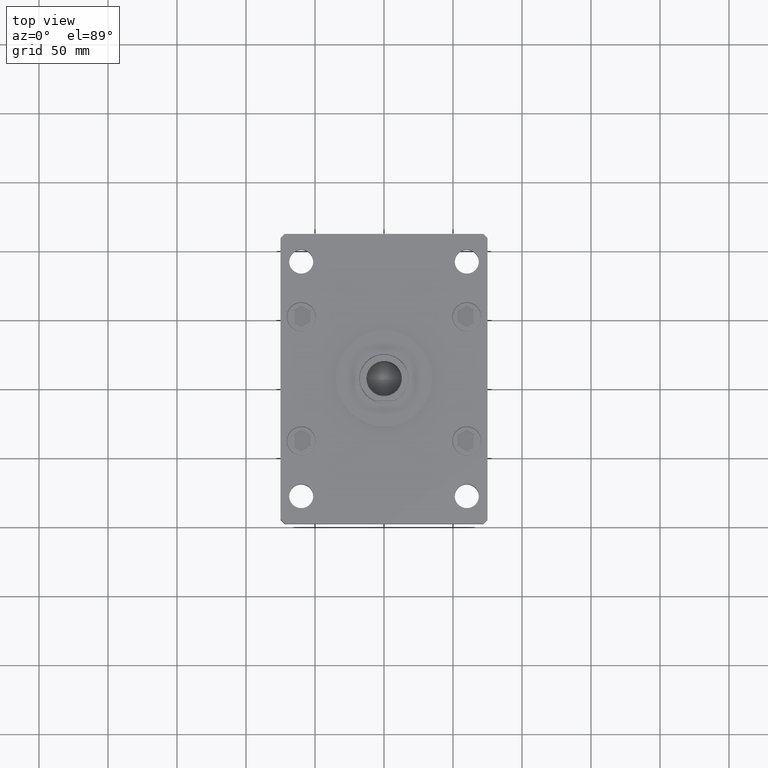
[diagram: clean part render]
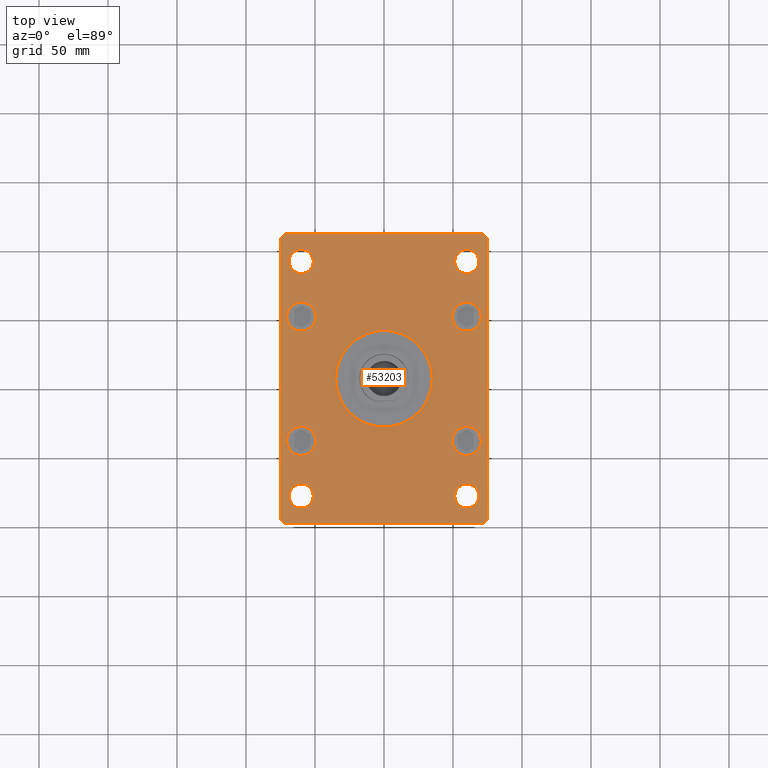
[diagram: same view with one face highlighted and labeled with its STEP entity id]
A machine part, top view. The second image highlights one B-rep face of the part: STEP entity #53203.
In plain terms, the highlighted planar face has unit normal (0, 0, 1).
Its self-contained STEP definition (entity closure, byte-faithful):
#122 = DIRECTION ( 'NONE',  ( 1.000000000000000000, 0.000000000000000000, -0.000000000000000000 ) ) ;
#176 = CIRCLE ( 'NONE', #37139, 10.50000000000000178 ) ;
#358 = AXIS2_PLACEMENT_3D ( 'NONE', #45935, #9316, #38651 ) ;
#674 = VERTEX_POINT ( 'NONE', #7983 ) ;
#840 = DIRECTION ( 'NONE',  ( 1.000000000000000000, 0.000000000000000000, 0.000000000000000000 ) ) ;
#1080 = ORIENTED_EDGE ( 'NONE', *, *, #24719, .F. ) ;
#1154 = ORIENTED_EDGE ( 'NONE', *, *, #52300, .F. ) ;
#1344 = DIRECTION ( 'NONE',  ( 1.000000000000000000, 0.000000000000000000, 0.000000000000000000 ) ) ;
#1459 = CARTESIAN_POINT ( 'NONE',  ( 68.75000000000000000, 84.99999999999998579, 27.00000000000000000 ) ) ;
#1609 = AXIS2_PLACEMENT_3D ( 'NONE', #44752, #33695, #37461 ) ;
#1645 = CIRCLE ( 'NONE', #12077, 10.49999999999999467 ) ;
#1860 = DIRECTION ( 'NONE',  ( 0.000000000000000000, 0.000000000000000000, 1.000000000000000000 ) ) ;
#2057 = AXIS2_PLACEMENT_3D ( 'NONE', #37257, #41310, #16549 ) ;
#2062 = EDGE_CURVE ( 'NONE', #11762, #26438, #36435, .T. ) ;
#2147 = EDGE_LOOP ( 'NONE', ( #18440, #53268 ) ) ;
#2414 = CIRCLE ( 'NONE', #13607, 8.750000000000007105 ) ;
#2774 = EDGE_CURVE ( 'NONE', #16116, #37351, #17884, .T. ) ;
#3089 = AXIS2_PLACEMENT_3D ( 'NONE', #12184, #29641, #840 ) ;
#3674 = EDGE_CURVE ( 'NONE', #16389, #17992, #27025, .T. ) ;
#3694 = CARTESIAN_POINT ( 'NONE',  ( -49.49999999999999289, -45.00000000000000000, 27.00000000000000000 ) ) ;
#3822 = AXIS2_PLACEMENT_3D ( 'NONE', #6044, #22458, #13334 ) ;
#4180 = DIRECTION ( 'NONE',  ( 1.000000000000000000, 7.709882115452476194E-16, 0.000000000000000000 ) ) ;
#4266 = ORIENTED_EDGE ( 'NONE', *, *, #10243, .F. ) ;
#4799 = ORIENTED_EDGE ( 'NONE', *, *, #34742, .F. ) ;
#5094 = DIRECTION ( 'NONE',  ( 1.000000000000000000, 0.000000000000000000, 0.000000000000000000 ) ) ;
#5169 = EDGE_CURVE ( 'NONE', #16867, #31351, #51125, .T. ) ;
#5299 = DIRECTION ( 'NONE',  ( -0.7071067811865459074, -0.7071067811865491270, 0.000000000000000000 ) ) ;
#5301 = CARTESIAN_POINT ( 'NONE',  ( -72.00000000000002842, 105.0000000000000000, 27.00000000000000000 ) ) ;
#5375 = DIRECTION ( 'NONE',  ( 0.000000000000000000, 0.000000000000000000, 1.000000000000000000 ) ) ;
#5658 = ORIENTED_EDGE ( 'NONE', *, *, #49992, .F. ) ;
#5718 = VECTOR ( 'NONE', #22574, 1000.000000000000000 ) ;
#6044 = CARTESIAN_POINT ( 'NONE',  ( -60.00000000000000711, 84.99999999999997158, 27.00000000000000000 ) ) ;
#6071 = CARTESIAN_POINT ( 'NONE',  ( -51.25000000000000000, 84.99999999999997158, 27.00000000000000000 ) ) ;
#6159 = LINE ( 'NONE', #6426, #5718 ) ;
#6426 = CARTESIAN_POINT ( 'NONE',  ( 72.00000000000004263, 105.0000000000000284, 27.00000000000000000 ) ) ;
#6636 = CIRCLE ( 'NONE', #18669, 8.750000000000007105 ) ;
#6782 = VECTOR ( 'NONE', #28862, 1000.000000000000000 ) ;
#7535 = CARTESIAN_POINT ( 'NONE',  ( 60.00000000000000000, -45.00000000000000711, 27.00000000000000000 ) ) ;
#7674 = DIRECTION ( 'NONE',  ( 1.000000000000000000, 0.000000000000000000, 0.000000000000000000 ) ) ;
#7681 = CIRCLE ( 'NONE', #31765, 8.750000000000007105 ) ;
#7811 = EDGE_CURVE ( 'NONE', #27761, #33843, #26290, .T. ) ;
#7812 = AXIS2_PLACEMENT_3D ( 'NONE', #34294, #46683, #9804 ) ;
#7852 = DIRECTION ( 'NONE',  ( 1.000000000000000000, 0.000000000000000000, 0.000000000000000000 ) ) ;
#7983 = CARTESIAN_POINT ( 'NONE',  ( 75.00000000000001421, 102.0000000000000142, 27.00000000000000000 ) ) ;
#8034 = EDGE_LOOP ( 'NONE', ( #5658, #36773 ) ) ;
#8050 = VERTEX_POINT ( 'NONE', #15865 ) ;
#8659 = AXIS2_PLACEMENT_3D ( 'NONE', #23831, #20330, #7674 ) ;
#8845 = CARTESIAN_POINT ( 'NONE',  ( 72.00000000000004263, 105.0000000000000284, 27.00000000000000000 ) ) ;
#9090 = EDGE_CURVE ( 'NONE', #43588, #9428, #6159, .T. ) ;
#9316 = DIRECTION ( 'NONE',  ( 0.000000000000000000, 0.000000000000000000, 1.000000000000000000 ) ) ;
#9395 = CARTESIAN_POINT ( 'NONE',  ( 59.99999999999997158, -85.00000000000001421, 27.00000000000000000 ) ) ;
#9428 = VERTEX_POINT ( 'NONE', #5301 ) ;
#9787 = VECTOR ( 'NONE', #13423, 1000.000000000000114 ) ;
#9804 = DIRECTION ( 'NONE',  ( 1.000000000000000000, 0.000000000000000000, 0.000000000000000000 ) ) ;
#10054 = AXIS2_PLACEMENT_3D ( 'NONE', #38741, #1860, #14244 ) ;
#10243 = EDGE_CURVE ( 'NONE', #25570, #25449, #33255, .T. ) ;
#10332 = EDGE_CURVE ( 'NONE', #11208, #23858, #18632, .T. ) ;
#10748 = VERTEX_POINT ( 'NONE', #18821 ) ;
#10898 = AXIS2_PLACEMENT_3D ( 'NONE', #13722, #5375, #33639 ) ;
#11131 = DIRECTION ( 'NONE',  ( 0.000000000000000000, 0.000000000000000000, 1.000000000000000000 ) ) ;
#11208 = VERTEX_POINT ( 'NONE', #26681 ) ;
#11316 = DIRECTION ( 'NONE',  ( 1.000000000000000000, 0.000000000000000000, 0.000000000000000000 ) ) ;
#11712 = FACE_BOUND ( 'NONE', #32734, .T. ) ;
#11730 = LINE ( 'NONE', #35215, #16242 ) ;
#11762 = VERTEX_POINT ( 'NONE', #27677 ) ;
#12077 = AXIS2_PLACEMENT_3D ( 'NONE', #18301, #39538, #30668 ) ;
#12174 = EDGE_LOOP ( 'NONE', ( #27941, #34195 ) ) ;
#12184 = CARTESIAN_POINT ( 'NONE',  ( -60.00000000000000000, 45.00000000000001421, 27.00000000000000000 ) ) ;
#12308 = ORIENTED_EDGE ( 'NONE', *, *, #48988, .T. ) ;
#12467 = CARTESIAN_POINT ( 'NONE',  ( 75.00000000000000000, -101.9999999999999005, 27.00000000000000000 ) ) ;
#13058 = DIRECTION ( 'NONE',  ( 0.7071067811865474617, -0.7071067811865474617, 0.000000000000000000 ) ) ;
#13334 = DIRECTION ( 'NONE',  ( 1.000000000000000000, 0.000000000000000000, 0.000000000000000000 ) ) ;
#13343 = CARTESIAN_POINT ( 'NONE',  ( 35.00000000000000711, 4.286263797015737285E-15, 27.00000000000000000 ) ) ;
#13423 = DIRECTION ( 'NONE',  ( 0.7071067811865459074, 0.7071067811865491270, 0.000000000000000000 ) ) ;
#13607 = AXIS2_PLACEMENT_3D ( 'NONE', #9395, #37925, #5094 ) ;
#13722 = CARTESIAN_POINT ( 'NONE',  ( 60.00000000000000000, 84.99999999999998579, 27.00000000000000000 ) ) ;
#14244 = DIRECTION ( 'NONE',  ( 1.000000000000000000, 0.000000000000000000, 0.000000000000000000 ) ) ;
#14569 = EDGE_CURVE ( 'NONE', #17992, #16389, #6636, .T. ) ;
#15753 = DIRECTION ( 'NONE',  ( -0.7071067811865426878, 0.7071067811865524577, 0.000000000000000000 ) ) ;
#15841 = CIRCLE ( 'NONE', #27022, 10.49999999999999467 ) ;
#15865 = CARTESIAN_POINT ( 'NONE',  ( 68.74999999999997158, -85.00000000000001421, 27.00000000000000000 ) ) ;
#15887 = CARTESIAN_POINT ( 'NONE',  ( -49.49999999999999289, 45.00000000000001421, 27.00000000000000000 ) ) ;
#15892 = CARTESIAN_POINT ( 'NONE',  ( 49.50000000000000000, -45.00000000000000711, 27.00000000000000000 ) ) ;
#16116 = VERTEX_POINT ( 'NONE', #29889 ) ;
#16242 = VECTOR ( 'NONE', #15753, 1000.000000000000000 ) ;
#16275 = FACE_BOUND ( 'NONE', #8034, .T. ) ;
#16389 = VERTEX_POINT ( 'NONE', #6071 ) ;
#16545 = CARTESIAN_POINT ( 'NONE',  ( 75.00000000000000000, -101.9999999999999005, 27.00000000000000000 ) ) ;
#16549 = DIRECTION ( 'NONE',  ( 1.000000000000000000, 0.000000000000000000, 0.000000000000000000 ) ) ;
#16586 = CARTESIAN_POINT ( 'NONE',  ( 70.50000000000000000, 45.00000000000000711, 27.00000000000000000 ) ) ;
#16867 = VERTEX_POINT ( 'NONE', #38779 ) ;
#17622 = CARTESIAN_POINT ( 'NONE',  ( -74.99999999999998579, -102.0000000000000142, 27.00000000000000000 ) ) ;
#17884 = LINE ( 'NONE', #17622, #33032 ) ;
#17992 = VERTEX_POINT ( 'NONE', #49449 ) ;
#18299 = ORIENTED_EDGE ( 'NONE', *, *, #20591, .T. ) ;
#18301 = CARTESIAN_POINT ( 'NONE',  ( 60.00000000000000000, 45.00000000000000711, 27.00000000000000000 ) ) ;
#18440 = ORIENTED_EDGE ( 'NONE', *, *, #7811, .F. ) ;
#18502 = CARTESIAN_POINT ( 'NONE',  ( -72.00000000000002842, 105.0000000000000000, 27.00000000000000000 ) ) ;
#18632 = CIRCLE ( 'NONE', #10054, 35.00000000000000711 ) ;
#18669 = AXIS2_PLACEMENT_3D ( 'NONE', #28036, #24544, #7852 ) ;
#18821 = CARTESIAN_POINT ( 'NONE',  ( -70.50000000000000000, -45.00000000000000000, 27.00000000000000000 ) ) ;
#19186 = VERTEX_POINT ( 'NONE', #16545 ) ;
#19542 = LINE ( 'NONE', #20340, #20688 ) ;
#19785 = FACE_BOUND ( 'NONE', #28976, .T. ) ;
#19812 = EDGE_CURVE ( 'NONE', #9428, #26573, #40914, .T. ) ;
#20330 = DIRECTION ( 'NONE',  ( 0.000000000000000000, 0.000000000000000000, 1.000000000000000000 ) ) ;
#20340 = CARTESIAN_POINT ( 'NONE',  ( -71.99999999999998579, -105.0000000000000142, 27.00000000000000000 ) ) ;
#20591 = EDGE_CURVE ( 'NONE', #19186, #674, #36933, .T. ) ;
#20688 = VECTOR ( 'NONE', #4180, 1000.000000000000000 ) ;
#20962 = AXIS2_PLACEMENT_3D ( 'NONE', #32693, #44541, #122 ) ;
#21622 = ORIENTED_EDGE ( 'NONE', *, *, #2774, .T. ) ;
#21624 = CIRCLE ( 'NONE', #38837, 10.49999999999999467 ) ;
#21718 = CARTESIAN_POINT ( 'NONE',  ( -70.50000000000000000, 45.00000000000001421, 27.00000000000000000 ) ) ;
#21756 = LINE ( 'NONE', #41945, #9787 ) ;
#22246 = CIRCLE ( 'NONE', #1609, 10.50000000000000178 ) ;
#22458 = DIRECTION ( 'NONE',  ( 0.000000000000000000, 0.000000000000000000, 1.000000000000000000 ) ) ;
#22574 = DIRECTION ( 'NONE',  ( -1.000000000000000000, -1.927470528863118062E-16, 0.000000000000000000 ) ) ;
#22807 = EDGE_LOOP ( 'NONE', ( #36700, #39885 ) ) ;
#23524 = ORIENTED_EDGE ( 'NONE', *, *, #44187, .F. ) ;
#23831 = CARTESIAN_POINT ( 'NONE',  ( 60.00000000000000000, 84.99999999999998579, 27.00000000000000000 ) ) ;
#23858 = VERTEX_POINT ( 'NONE', #13343 ) ;
#24544 = DIRECTION ( 'NONE',  ( 0.000000000000000000, 0.000000000000000000, 1.000000000000000000 ) ) ;
#24719 = EDGE_CURVE ( 'NONE', #25449, #25570, #47351, .T. ) ;
#24841 = VECTOR ( 'NONE', #5299, 1000.000000000000114 ) ;
#25226 = CIRCLE ( 'NONE', #51852, 10.50000000000000178 ) ;
#25400 = EDGE_CURVE ( 'NONE', #37351, #38755, #19542, .T. ) ;
#25449 = VERTEX_POINT ( 'NONE', #36742 ) ;
#25514 = VERTEX_POINT ( 'NONE', #30257 ) ;
#25570 = VERTEX_POINT ( 'NONE', #1459 ) ;
#25595 = CARTESIAN_POINT ( 'NONE',  ( -60.00000000000000000, -45.00000000000000000, 27.00000000000000000 ) ) ;
#25603 = EDGE_CURVE ( 'NONE', #23858, #11208, #41366, .T. ) ;
#26290 = CIRCLE ( 'NONE', #3089, 10.50000000000000178 ) ;
#26438 = VERTEX_POINT ( 'NONE', #27544 ) ;
#26573 = VERTEX_POINT ( 'NONE', #48008 ) ;
#26665 = CARTESIAN_POINT ( 'NONE',  ( -71.99999999999998579, -105.0000000000000142, 27.00000000000000000 ) ) ;
#26681 = CARTESIAN_POINT ( 'NONE',  ( -35.00000000000000711, 0.000000000000000000, 27.00000000000000000 ) ) ;
#27022 = AXIS2_PLACEMENT_3D ( 'NONE', #7535, #48714, #35274 ) ;
#27025 = CIRCLE ( 'NONE', #3822, 8.750000000000007105 ) ;
#27051 = ORIENTED_EDGE ( 'NONE', *, *, #2062, .F. ) ;
#27283 = EDGE_CURVE ( 'NONE', #8050, #37485, #2414, .T. ) ;
#27507 = VERTEX_POINT ( 'NONE', #3694 ) ;
#27544 = CARTESIAN_POINT ( 'NONE',  ( -51.24999999999996447, -85.00000000000001421, 27.00000000000000000 ) ) ;
#27677 = CARTESIAN_POINT ( 'NONE',  ( -68.74999999999997158, -85.00000000000001421, 27.00000000000000000 ) ) ;
#27761 = VERTEX_POINT ( 'NONE', #21718 ) ;
#27803 = DIRECTION ( 'NONE',  ( 1.000000000000000000, 0.000000000000000000, 0.000000000000000000 ) ) ;
#27941 = ORIENTED_EDGE ( 'NONE', *, *, #10332, .F. ) ;
#28036 = CARTESIAN_POINT ( 'NONE',  ( -60.00000000000000711, 84.99999999999997158, 27.00000000000000000 ) ) ;
#28219 = ORIENTED_EDGE ( 'NONE', *, *, #9090, .T. ) ;
#28261 = EDGE_CURVE ( 'NONE', #33843, #27761, #22246, .T. ) ;
#28389 = FACE_BOUND ( 'NONE', #2147, .T. ) ;
#28640 = LINE ( 'NONE', #53132, #41602 ) ;
#28862 = DIRECTION ( 'NONE',  ( 6.802837160693364103E-17, 1.000000000000000000, 0.000000000000000000 ) ) ;
#28924 = FACE_BOUND ( 'NONE', #22807, .T. ) ;
#28965 = EDGE_LOOP ( 'NONE', ( #27051, #46907 ) ) ;
#28976 = EDGE_LOOP ( 'NONE', ( #1080, #4266 ) ) ;
#29615 = DIRECTION ( 'NONE',  ( 0.000000000000000000, 0.000000000000000000, 1.000000000000000000 ) ) ;
#29641 = DIRECTION ( 'NONE',  ( 0.000000000000000000, 0.000000000000000000, 1.000000000000000000 ) ) ;
#29889 = CARTESIAN_POINT ( 'NONE',  ( -74.99999999999998579, -102.0000000000000142, 27.00000000000000000 ) ) ;
#30257 = CARTESIAN_POINT ( 'NONE',  ( 49.50000000000000000, 45.00000000000000711, 27.00000000000000000 ) ) ;
#30668 = DIRECTION ( 'NONE',  ( 1.000000000000000000, 0.000000000000000000, 0.000000000000000000 ) ) ;
#30727 = EDGE_CURVE ( 'NONE', #674, #43588, #11730, .T. ) ;
#30862 = ORIENTED_EDGE ( 'NONE', *, *, #5169, .F. ) ;
#31054 = EDGE_CURVE ( 'NONE', #26438, #11762, #7681, .T. ) ;
#31351 = VERTEX_POINT ( 'NONE', #15892 ) ;
#31765 = AXIS2_PLACEMENT_3D ( 'NONE', #48526, #11131, #27803 ) ;
#32287 = CARTESIAN_POINT ( 'NONE',  ( -60.00000000000000000, -45.00000000000000000, 27.00000000000000000 ) ) ;
#32693 = CARTESIAN_POINT ( 'NONE',  ( 0.000000000000000000, 0.000000000000000000, 27.00000000000000000 ) ) ;
#32734 = EDGE_LOOP ( 'NONE', ( #4799, #36888 ) ) ;
#32826 = CARTESIAN_POINT ( 'NONE',  ( 60.00000000000000000, 45.00000000000000711, 27.00000000000000000 ) ) ;
#33028 = CIRCLE ( 'NONE', #358, 8.750000000000007105 ) ;
#33032 = VECTOR ( 'NONE', #13058, 1000.000000000000114 ) ;
#33055 = EDGE_LOOP ( 'NONE', ( #1154, #23524 ) ) ;
#33255 = CIRCLE ( 'NONE', #10898, 8.750000000000007105 ) ;
#33639 = DIRECTION ( 'NONE',  ( 1.000000000000000000, 0.000000000000000000, 0.000000000000000000 ) ) ;
#33695 = DIRECTION ( 'NONE',  ( 0.000000000000000000, 0.000000000000000000, 1.000000000000000000 ) ) ;
#33805 = ORIENTED_EDGE ( 'NONE', *, *, #25400, .T. ) ;
#33843 = VERTEX_POINT ( 'NONE', #15887 ) ;
#34195 = ORIENTED_EDGE ( 'NONE', *, *, #25603, .F. ) ;
#34294 = CARTESIAN_POINT ( 'NONE',  ( 0.000000000000000000, 0.000000000000000000, 27.00000000000000000 ) ) ;
#34742 = EDGE_CURVE ( 'NONE', #25514, #40058, #1645, .T. ) ;
#35215 = CARTESIAN_POINT ( 'NONE',  ( 75.00000000000001421, 102.0000000000000142, 27.00000000000000000 ) ) ;
#35274 = DIRECTION ( 'NONE',  ( 1.000000000000000000, 0.000000000000000000, 0.000000000000000000 ) ) ;
#36187 = FACE_OUTER_BOUND ( 'NONE', #41808, .T. ) ;
#36435 = CIRCLE ( 'NONE', #2057, 8.750000000000007105 ) ;
#36700 = ORIENTED_EDGE ( 'NONE', *, *, #14569, .F. ) ;
#36742 = CARTESIAN_POINT ( 'NONE',  ( 51.24999999999998579, 84.99999999999998579, 27.00000000000000000 ) ) ;
#36773 = ORIENTED_EDGE ( 'NONE', *, *, #27283, .F. ) ;
#36888 = ORIENTED_EDGE ( 'NONE', *, *, #42817, .F. ) ;
#36933 = LINE ( 'NONE', #12467, #6782 ) ;
#36994 = FACE_BOUND ( 'NONE', #12174, .T. ) ;
#37139 = AXIS2_PLACEMENT_3D ( 'NONE', #32287, #48182, #11316 ) ;
#37257 = CARTESIAN_POINT ( 'NONE',  ( -59.99999999999997158, -85.00000000000001421, 27.00000000000000000 ) ) ;
#37351 = VERTEX_POINT ( 'NONE', #26665 ) ;
#37461 = DIRECTION ( 'NONE',  ( 1.000000000000000000, 0.000000000000000000, 0.000000000000000000 ) ) ;
#37485 = VERTEX_POINT ( 'NONE', #52381 ) ;
#37925 = DIRECTION ( 'NONE',  ( 0.000000000000000000, 0.000000000000000000, 1.000000000000000000 ) ) ;
#38651 = DIRECTION ( 'NONE',  ( 1.000000000000000000, 0.000000000000000000, 0.000000000000000000 ) ) ;
#38741 = CARTESIAN_POINT ( 'NONE',  ( 0.000000000000000000, 0.000000000000000000, 27.00000000000000000 ) ) ;
#38755 = VERTEX_POINT ( 'NONE', #51917 ) ;
#38779 = CARTESIAN_POINT ( 'NONE',  ( 70.50000000000000000, -45.00000000000000711, 27.00000000000000000 ) ) ;
#38784 = DIRECTION ( 'NONE',  ( 1.000000000000000000, 0.000000000000000000, 0.000000000000000000 ) ) ;
#38837 = AXIS2_PLACEMENT_3D ( 'NONE', #32826, #44671, #48438 ) ;
#39043 = DIRECTION ( 'NONE',  ( 0.000000000000000000, 0.000000000000000000, 1.000000000000000000 ) ) ;
#39538 = DIRECTION ( 'NONE',  ( 0.000000000000000000, 0.000000000000000000, 1.000000000000000000 ) ) ;
#39885 = ORIENTED_EDGE ( 'NONE', *, *, #3674, .F. ) ;
#40058 = VERTEX_POINT ( 'NONE', #16586 ) ;
#40768 = FACE_BOUND ( 'NONE', #50137, .T. ) ;
#40809 = ORIENTED_EDGE ( 'NONE', *, *, #49139, .T. ) ;
#40825 = ORIENTED_EDGE ( 'NONE', *, *, #19812, .T. ) ;
#40914 = LINE ( 'NONE', #18502, #24841 ) ;
#41295 = DIRECTION ( 'NONE',  ( 1.360567432138672081E-16, -1.000000000000000000, 0.000000000000000000 ) ) ;
#41307 = PLANE ( 'NONE',  #20962 ) ;
#41310 = DIRECTION ( 'NONE',  ( 0.000000000000000000, 0.000000000000000000, 1.000000000000000000 ) ) ;
#41366 = CIRCLE ( 'NONE', #7812, 35.00000000000000711 ) ;
#41602 = VECTOR ( 'NONE', #41295, 1000.000000000000000 ) ;
#41677 = AXIS2_PLACEMENT_3D ( 'NONE', #42258, #29615, #1344 ) ;
#41808 = EDGE_LOOP ( 'NONE', ( #33805, #12308, #18299, #52387, #28219, #40825, #40809, #21622 ) ) ;
#41945 = CARTESIAN_POINT ( 'NONE',  ( 72.00000000000001421, -104.9999999999999005, 27.00000000000000000 ) ) ;
#42258 = CARTESIAN_POINT ( 'NONE',  ( 60.00000000000000000, -45.00000000000000711, 27.00000000000000000 ) ) ;
#42817 = EDGE_CURVE ( 'NONE', #40058, #25514, #21624, .T. ) ;
#43588 = VERTEX_POINT ( 'NONE', #8845 ) ;
#44187 = EDGE_CURVE ( 'NONE', #27507, #10748, #176, .T. ) ;
#44541 = DIRECTION ( 'NONE',  ( 0.000000000000000000, 0.000000000000000000, 1.000000000000000000 ) ) ;
#44671 = DIRECTION ( 'NONE',  ( 0.000000000000000000, 0.000000000000000000, 1.000000000000000000 ) ) ;
#44752 = CARTESIAN_POINT ( 'NONE',  ( -60.00000000000000000, 45.00000000000001421, 27.00000000000000000 ) ) ;
#45345 = FACE_BOUND ( 'NONE', #33055, .T. ) ;
#45935 = CARTESIAN_POINT ( 'NONE',  ( 59.99999999999997158, -85.00000000000001421, 27.00000000000000000 ) ) ;
#46683 = DIRECTION ( 'NONE',  ( 0.000000000000000000, 0.000000000000000000, 1.000000000000000000 ) ) ;
#46907 = ORIENTED_EDGE ( 'NONE', *, *, #31054, .F. ) ;
#47351 = CIRCLE ( 'NONE', #8659, 8.750000000000007105 ) ;
#47512 = ORIENTED_EDGE ( 'NONE', *, *, #50374, .F. ) ;
#48008 = CARTESIAN_POINT ( 'NONE',  ( -75.00000000000001421, 102.0000000000000000, 27.00000000000000000 ) ) ;
#48182 = DIRECTION ( 'NONE',  ( 0.000000000000000000, 0.000000000000000000, 1.000000000000000000 ) ) ;
#48438 = DIRECTION ( 'NONE',  ( 1.000000000000000000, 0.000000000000000000, 0.000000000000000000 ) ) ;
#48526 = CARTESIAN_POINT ( 'NONE',  ( -59.99999999999997158, -85.00000000000001421, 27.00000000000000000 ) ) ;
#48714 = DIRECTION ( 'NONE',  ( 0.000000000000000000, 0.000000000000000000, 1.000000000000000000 ) ) ;
#48988 = EDGE_CURVE ( 'NONE', #38755, #19186, #21756, .T. ) ;
#49139 = EDGE_CURVE ( 'NONE', #26573, #16116, #28640, .T. ) ;
#49449 = CARTESIAN_POINT ( 'NONE',  ( -68.75000000000000000, 84.99999999999997158, 27.00000000000000000 ) ) ;
#49992 = EDGE_CURVE ( 'NONE', #37485, #8050, #33028, .T. ) ;
#50137 = EDGE_LOOP ( 'NONE', ( #47512, #30862 ) ) ;
#50374 = EDGE_CURVE ( 'NONE', #31351, #16867, #15841, .T. ) ;
#51125 = CIRCLE ( 'NONE', #41677, 10.49999999999999467 ) ;
#51852 = AXIS2_PLACEMENT_3D ( 'NONE', #25595, #39043, #38784 ) ;
#51917 = CARTESIAN_POINT ( 'NONE',  ( 72.00000000000001421, -104.9999999999999005, 27.00000000000000000 ) ) ;
#52300 = EDGE_CURVE ( 'NONE', #10748, #27507, #25226, .T. ) ;
#52381 = CARTESIAN_POINT ( 'NONE',  ( 51.24999999999995737, -85.00000000000001421, 27.00000000000000000 ) ) ;
#52387 = ORIENTED_EDGE ( 'NONE', *, *, #30727, .T. ) ;
#53132 = CARTESIAN_POINT ( 'NONE',  ( -75.00000000000001421, 102.0000000000000000, 27.00000000000000000 ) ) ;
#53146 = FACE_BOUND ( 'NONE', #28965, .T. ) ;
#53203 = ADVANCED_FACE ( 'NONE', ( #36994, #28389, #40768, #28924, #53146, #36187, #19785, #45345, #11712, #16275 ), #41307, .T. ) ;
#53268 = ORIENTED_EDGE ( 'NONE', *, *, #28261, .F. ) ;